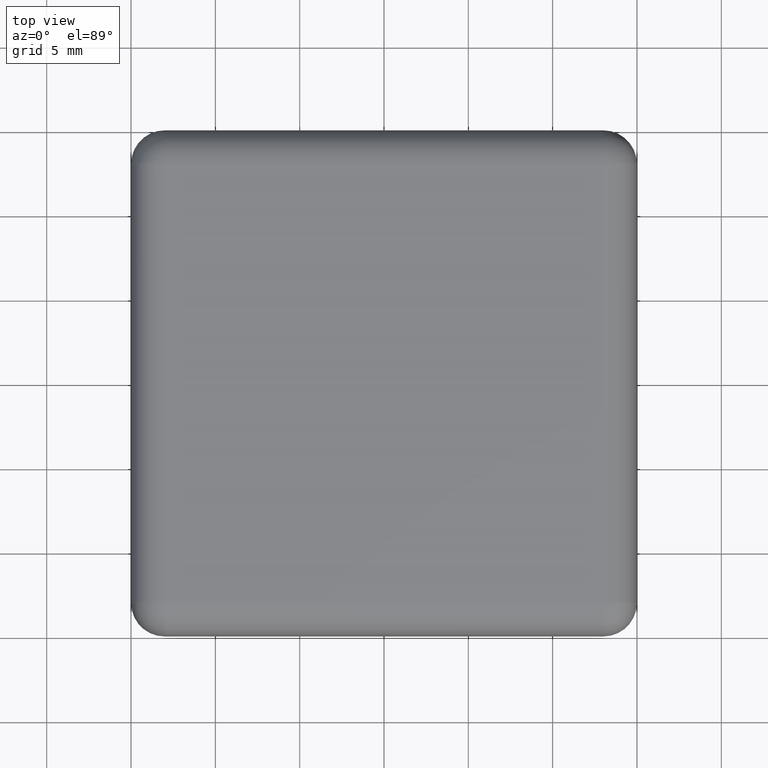
[diagram: clean part render]
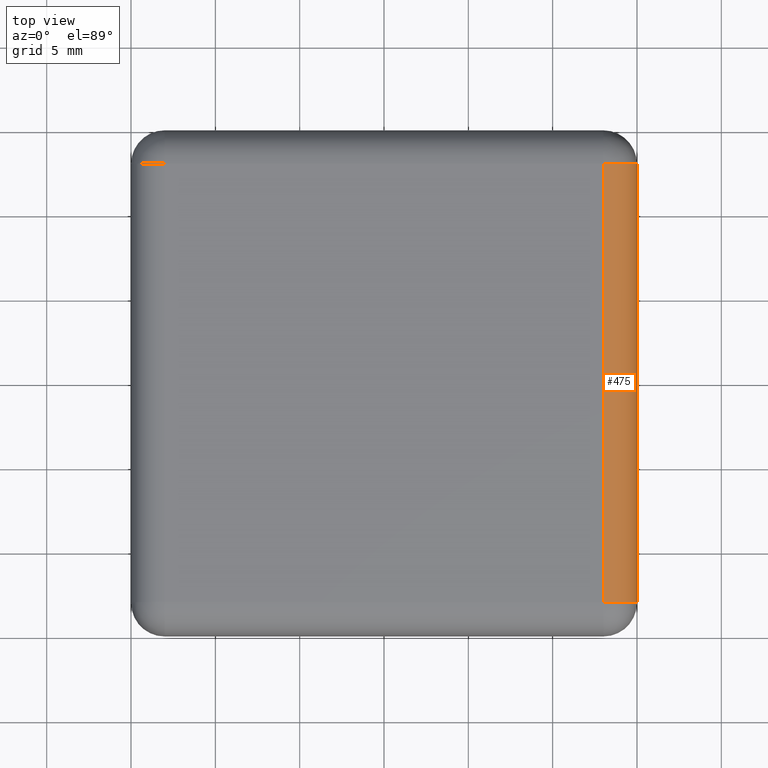
[diagram: same view with one face highlighted and labeled with its STEP entity id]
A machine part, top view. The second image highlights one B-rep face of the part: STEP entity #475.
In plain terms, the highlighted cylindrical surface (edge-blend (fillet) strip) has radius 2 mm, axis along (0, 1, 0).
Its self-contained STEP definition (entity closure, byte-faithful):
#45=LINE('',#817,#81);
#46=LINE('',#818,#82);
#81=VECTOR('',#669,26.);
#82=VECTOR('',#670,26.);
#131=FACE_OUTER_BOUND('',#169,.T.);
#169=EDGE_LOOP('',(#397,#398,#399,#400));
#197=CIRCLE('',#520,2.);
#205=CIRCLE('',#532,2.);
#237=VERTEX_POINT('',#787);
#238=VERTEX_POINT('',#788);
#244=VERTEX_POINT('',#808);
#245=VERTEX_POINT('',#810);
#285=EDGE_CURVE('',#237,#238,#197,.F.);
#297=EDGE_CURVE('',#244,#245,#205,.F.);
#300=EDGE_CURVE('',#238,#244,#45,.T.);
#301=EDGE_CURVE('',#245,#237,#46,.T.);
#397=ORIENTED_EDGE('',*,*,#285,.T.);
#398=ORIENTED_EDGE('',*,*,#300,.T.);
#399=ORIENTED_EDGE('',*,*,#297,.T.);
#400=ORIENTED_EDGE('',*,*,#301,.T.);
#450=CYLINDRICAL_SURFACE('',#534,2.);
#475=ADVANCED_FACE('',(#131),#450,.T.);
#520=AXIS2_PLACEMENT_3D('',#789,#633,#634);
#532=AXIS2_PLACEMENT_3D('',#812,#661,#662);
#534=AXIS2_PLACEMENT_3D('',#816,#667,#668);
#633=DIRECTION('center_axis',(0.,1.,0.));
#634=DIRECTION('ref_axis',(1.,0.,0.));
#661=DIRECTION('center_axis',(-1.11022302462516E-15,-1.,0.));
#662=DIRECTION('ref_axis',(0.,0.,1.));
#667=DIRECTION('center_axis',(0.,1.,0.));
#668=DIRECTION('ref_axis',(0.707106781186547,0.,0.707106781186548));
#669=DIRECTION('',(0.,-1.,0.));
#670=DIRECTION('',(0.,1.,0.));
#787=CARTESIAN_POINT('',(15.,13.,1.));
#788=CARTESIAN_POINT('',(13.,13.,3.));
#789=CARTESIAN_POINT('Origin',(13.,13.,1.));
#808=CARTESIAN_POINT('',(13.,-13.,3.));
#810=CARTESIAN_POINT('',(15.,-13.,1.));
#812=CARTESIAN_POINT('Origin',(13.,-13.,1.));
#816=CARTESIAN_POINT('Origin',(13.,-7.49999999999999,1.));
#817=CARTESIAN_POINT('',(13.,-7.49999999999999,3.));
#818=CARTESIAN_POINT('',(15.,-7.49999999999999,1.));